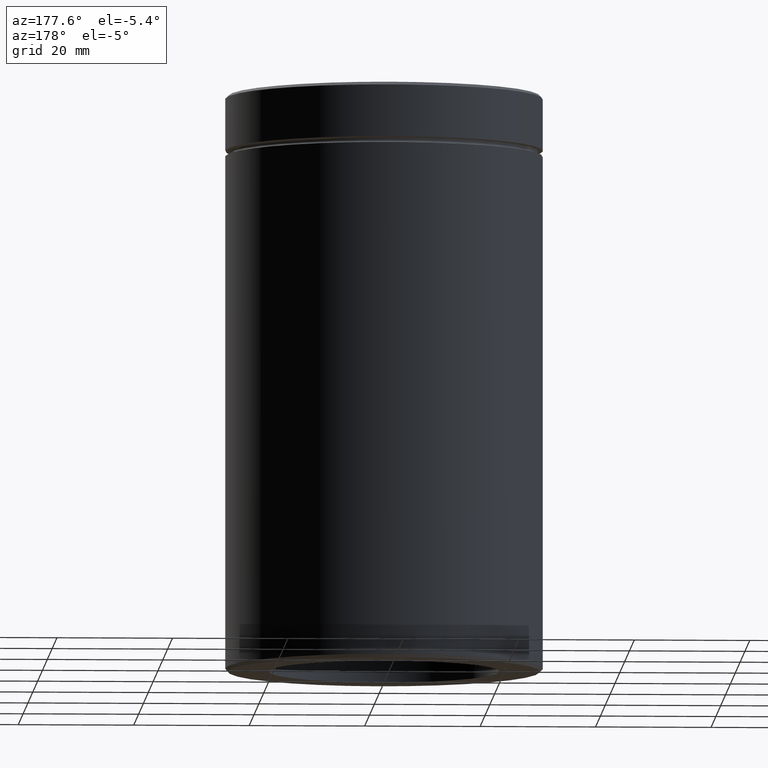
[diagram: clean part render]
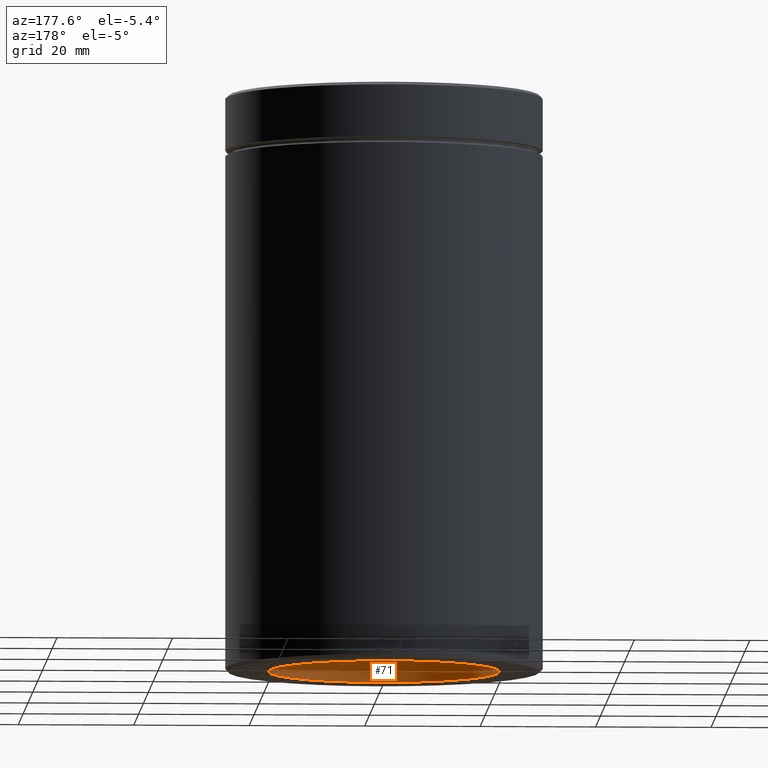
[diagram: same view with one face highlighted and labeled with its STEP entity id]
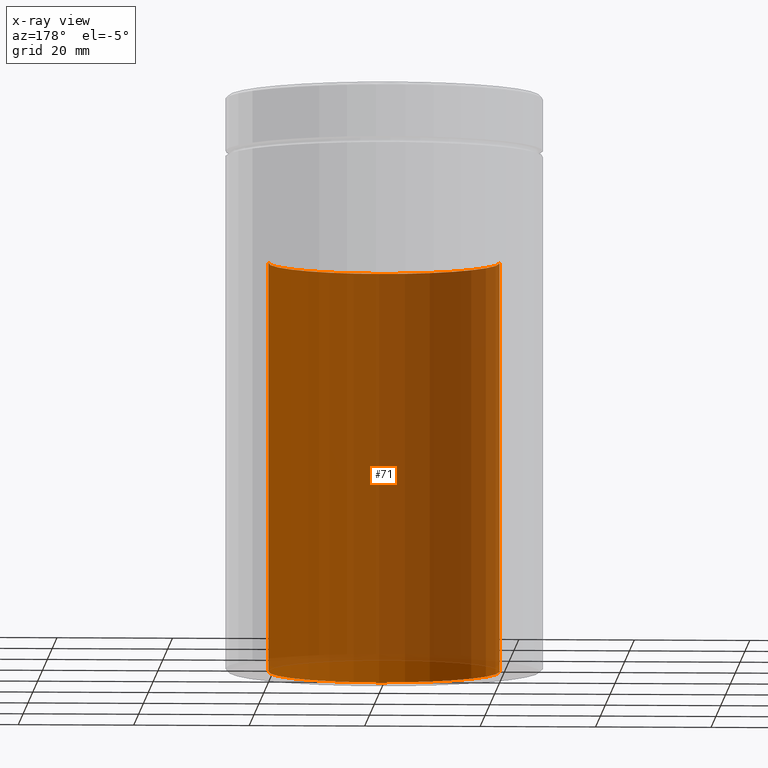
[diagram: x-ray of the same camera — body ghosted, the highlighted face saturated]
A machine part, auxiliary view. The second image highlights one B-rep face of the part: STEP entity #71.
The next image is the same camera in x-ray: the body ghosted, the highlighted face saturated — about 96% of this face is hidden behind the body in this view.
In plain terms, the highlighted cylindrical surface (partial cylindrical patch) has radius 20 mm, axis along (-0, -0, -1).
Its self-contained STEP definition (entity closure, byte-faithful):
#5 = LINE ( 'NONE', #13, #182 ) ;
#6 = CARTESIAN_POINT ( 'NONE',  ( -20.00000000000000000, 0.000000000000000000, -29.00000000000001066 ) ) ;
#12 = EDGE_CURVE ( 'NONE', #377, #303, #392, .T. ) ;
#13 = CARTESIAN_POINT ( 'NONE',  ( 20.00000000000000000, 2.449293598294706513E-15, -29.00000000000001066 ) ) ;
#15 = CARTESIAN_POINT ( 'NONE',  ( -20.00000000000000000, 0.000000000000000000, -100.0000000000000000 ) ) ;
#38 = VERTEX_POINT ( 'NONE', #535 ) ;
#52 = DIRECTION ( 'NONE',  ( 0.000000000000000000, 0.000000000000000000, -1.000000000000000000 ) ) ;
#69 = CARTESIAN_POINT ( 'NONE',  ( 0.000000000000000000, 0.000000000000000000, -29.00000000000001066 ) ) ;
#71 = ADVANCED_FACE ( 'NONE', ( #278 ), #234, .F. ) ;
#85 = EDGE_LOOP ( 'NONE', ( #236, #515, #546, #117 ) ) ;
#88 = EDGE_CURVE ( 'NONE', #38, #377, #123, .T. ) ;
#111 = CARTESIAN_POINT ( 'NONE',  ( 20.00000000000000000, 2.449293598294706513E-15, -100.0000000000000000 ) ) ;
#117 = ORIENTED_EDGE ( 'NONE', *, *, #12, .F. ) ;
#123 = CIRCLE ( 'NONE', #277, 20.00000000000000000 ) ;
#136 = CARTESIAN_POINT ( 'NONE',  ( 0.000000000000000000, 0.000000000000000000, -100.0000000000000000 ) ) ;
#148 = DIRECTION ( 'NONE',  ( -1.000000000000000000, 0.000000000000000000, 0.000000000000000000 ) ) ;
#164 = CARTESIAN_POINT ( 'NONE',  ( -20.00000000000000000, 0.000000000000000000, -29.00000000000001066 ) ) ;
#182 = VECTOR ( 'NONE', #345, 1000.000000000000000 ) ;
#188 = EDGE_CURVE ( 'NONE', #338, #303, #194, .T. ) ;
#194 = CIRCLE ( 'NONE', #519, 20.00000000000000000 ) ;
#199 = AXIS2_PLACEMENT_3D ( 'NONE', #69, #412, #328 ) ;
#227 = EDGE_CURVE ( 'NONE', #38, #338, #5, .T. ) ;
#234 = CYLINDRICAL_SURFACE ( 'NONE', #199, 20.00000000000000000 ) ;
#236 = ORIENTED_EDGE ( 'NONE', *, *, #88, .F. ) ;
#240 = DIRECTION ( 'NONE',  ( 0.000000000000000000, 0.000000000000000000, -1.000000000000000000 ) ) ;
#277 = AXIS2_PLACEMENT_3D ( 'NONE', #283, #240, #148 ) ;
#278 = FACE_OUTER_BOUND ( 'NONE', #85, .T. ) ;
#283 = CARTESIAN_POINT ( 'NONE',  ( 0.000000000000000000, 0.000000000000000000, -29.00000000000001066 ) ) ;
#303 = VERTEX_POINT ( 'NONE', #15 ) ;
#328 = DIRECTION ( 'NONE',  ( -1.000000000000000000, 0.000000000000000000, 0.000000000000000000 ) ) ;
#338 = VERTEX_POINT ( 'NONE', #111 ) ;
#345 = DIRECTION ( 'NONE',  ( -0.000000000000000000, -0.000000000000000000, -1.000000000000000000 ) ) ;
#346 = DIRECTION ( 'NONE',  ( -0.000000000000000000, -0.000000000000000000, -1.000000000000000000 ) ) ;
#377 = VERTEX_POINT ( 'NONE', #164 ) ;
#392 = LINE ( 'NONE', #6, #395 ) ;
#395 = VECTOR ( 'NONE', #346, 1000.000000000000000 ) ;
#404 = DIRECTION ( 'NONE',  ( -1.000000000000000000, 0.000000000000000000, 0.000000000000000000 ) ) ;
#412 = DIRECTION ( 'NONE',  ( -0.000000000000000000, -0.000000000000000000, -1.000000000000000000 ) ) ;
#515 = ORIENTED_EDGE ( 'NONE', *, *, #227, .T. ) ;
#519 = AXIS2_PLACEMENT_3D ( 'NONE', #136, #52, #404 ) ;
#535 = CARTESIAN_POINT ( 'NONE',  ( 20.00000000000000000, 2.449293598294706513E-15, -29.00000000000001066 ) ) ;
#546 = ORIENTED_EDGE ( 'NONE', *, *, #188, .T. ) ;